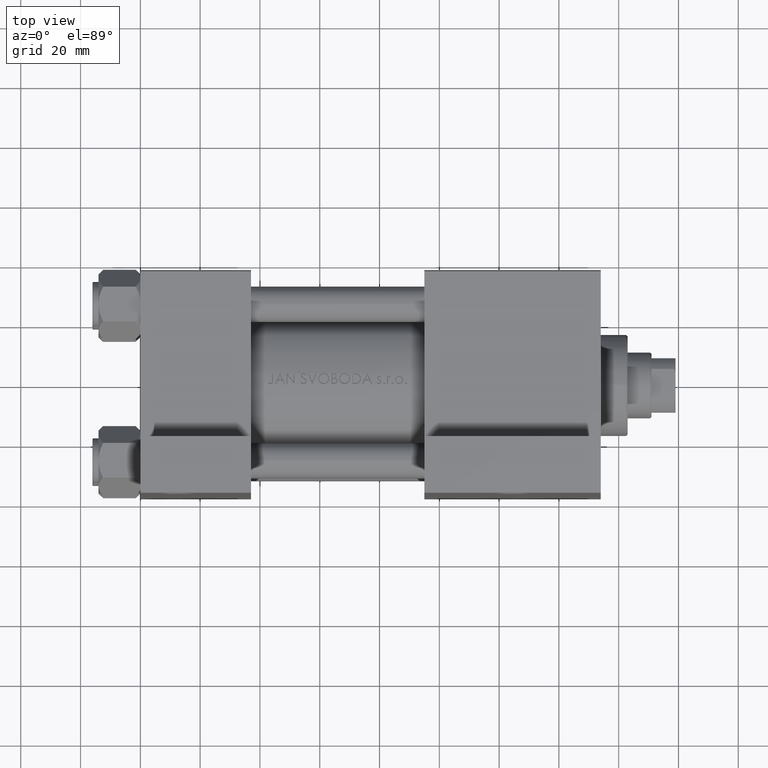
[diagram: clean part render]
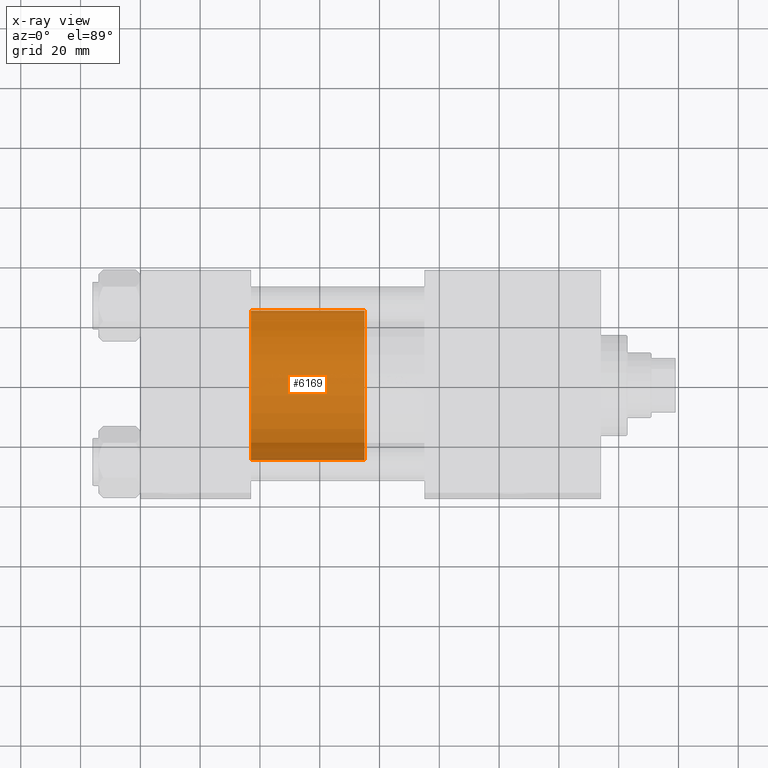
[diagram: x-ray — body ghosted, one internal face saturated and labeled with its STEP entity id]
A machine part, top view, then the same camera in x-ray: the body is ghosted and one INTERNAL B-rep face — a face not visible from any outside direction — is saturated and labeled: STEP entity #6169.
In plain terms, the highlighted cylindrical surface (partial cylindrical patch) has radius 25 mm, axis along (-1, 0, 0).
Its self-contained STEP definition (entity closure, byte-faithful):
#819 = CYLINDRICAL_SURFACE ( 'NONE', #12157, 25.00000000000000000 ) ;
#3728 = FACE_OUTER_BOUND ( 'NONE', #16788, .T. ) ;
#4494 = EDGE_CURVE ( 'NONE', #45443, #31184, #28573, .T. ) ;
#6169 = ADVANCED_FACE ( 'NONE', ( #3728 ), #819, .T. ) ;
#7029 = AXIS2_PLACEMENT_3D ( 'NONE', #13657, #17491, #46809 ) ;
#7223 = LINE ( 'NONE', #20516, #32573 ) ;
#10581 = ORIENTED_EDGE ( 'NONE', *, *, #37424, .F. ) ;
#10696 = DIRECTION ( 'NONE',  ( -1.000000000000000000, 0.000000000000000000, 0.000000000000000000 ) ) ;
#12157 = AXIS2_PLACEMENT_3D ( 'NONE', #40728, #22475, #10696 ) ;
#13657 = CARTESIAN_POINT ( 'NONE',  ( 0.000000000000000000, 0.000000000000000000, 38.00000000000000000 ) ) ;
#16788 = EDGE_LOOP ( 'NONE', ( #10581, #39938, #46595, #44221 ) ) ;
#17491 = DIRECTION ( 'NONE',  ( 0.000000000000000000, 0.000000000000000000, 1.000000000000000000 ) ) ;
#20516 = CARTESIAN_POINT ( 'NONE',  ( 25.00000000000000000, 3.061616997868383043E-15, 38.00000000000000000 ) ) ;
#20868 = VERTEX_POINT ( 'NONE', #34095 ) ;
#21102 = CARTESIAN_POINT ( 'NONE',  ( 0.000000000000000000, 0.000000000000000000, 0.000000000000000000 ) ) ;
#22475 = DIRECTION ( 'NONE',  ( -0.000000000000000000, -0.000000000000000000, -1.000000000000000000 ) ) ;
#23916 = VERTEX_POINT ( 'NONE', #45576 ) ;
#24536 = EDGE_CURVE ( 'NONE', #23916, #31184, #33996, .T. ) ;
#25436 = DIRECTION ( 'NONE',  ( -0.000000000000000000, -0.000000000000000000, -1.000000000000000000 ) ) ;
#27072 = AXIS2_PLACEMENT_3D ( 'NONE', #21102, #35765, #36003 ) ;
#27439 = VECTOR ( 'NONE', #25436, 1000.000000000000000 ) ;
#27768 = CIRCLE ( 'NONE', #7029, 25.00000000000000000 ) ;
#28573 = LINE ( 'NONE', #32660, #27439 ) ;
#29045 = EDGE_CURVE ( 'NONE', #20868, #23916, #7223, .T. ) ;
#31184 = VERTEX_POINT ( 'NONE', #33215 ) ;
#32573 = VECTOR ( 'NONE', #36310, 1000.000000000000000 ) ;
#32660 = CARTESIAN_POINT ( 'NONE',  ( -25.00000000000000000, 0.000000000000000000, 38.00000000000000000 ) ) ;
#33215 = CARTESIAN_POINT ( 'NONE',  ( -25.00000000000000000, 0.000000000000000000, 0.000000000000000000 ) ) ;
#33996 = CIRCLE ( 'NONE', #27072, 25.00000000000000000 ) ;
#34095 = CARTESIAN_POINT ( 'NONE',  ( 25.00000000000000000, 3.061616997868383043E-15, 38.00000000000000000 ) ) ;
#35613 = CARTESIAN_POINT ( 'NONE',  ( -25.00000000000000000, 0.000000000000000000, 38.00000000000000000 ) ) ;
#35765 = DIRECTION ( 'NONE',  ( 0.000000000000000000, 0.000000000000000000, 1.000000000000000000 ) ) ;
#36003 = DIRECTION ( 'NONE',  ( 1.000000000000000000, 0.000000000000000000, 0.000000000000000000 ) ) ;
#36310 = DIRECTION ( 'NONE',  ( -0.000000000000000000, -0.000000000000000000, -1.000000000000000000 ) ) ;
#37424 = EDGE_CURVE ( 'NONE', #20868, #45443, #27768, .T. ) ;
#39938 = ORIENTED_EDGE ( 'NONE', *, *, #29045, .T. ) ;
#40728 = CARTESIAN_POINT ( 'NONE',  ( 0.000000000000000000, 0.000000000000000000, 38.00000000000000000 ) ) ;
#44221 = ORIENTED_EDGE ( 'NONE', *, *, #4494, .F. ) ;
#45443 = VERTEX_POINT ( 'NONE', #35613 ) ;
#45576 = CARTESIAN_POINT ( 'NONE',  ( 25.00000000000000000, 3.061616997868383043E-15, 0.000000000000000000 ) ) ;
#46595 = ORIENTED_EDGE ( 'NONE', *, *, #24536, .T. ) ;
#46809 = DIRECTION ( 'NONE',  ( 1.000000000000000000, 0.000000000000000000, 0.000000000000000000 ) ) ;